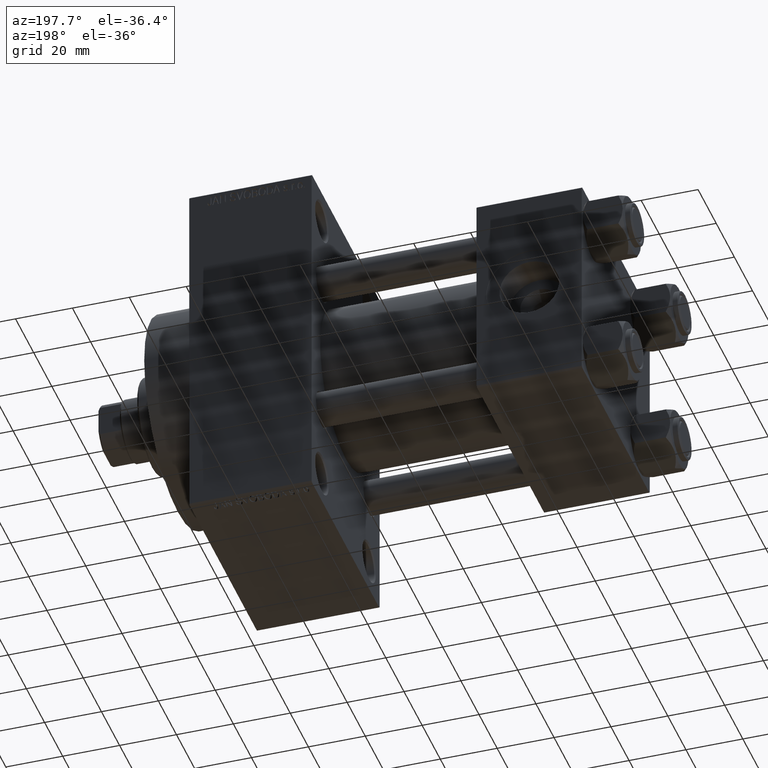
[diagram: clean part render]
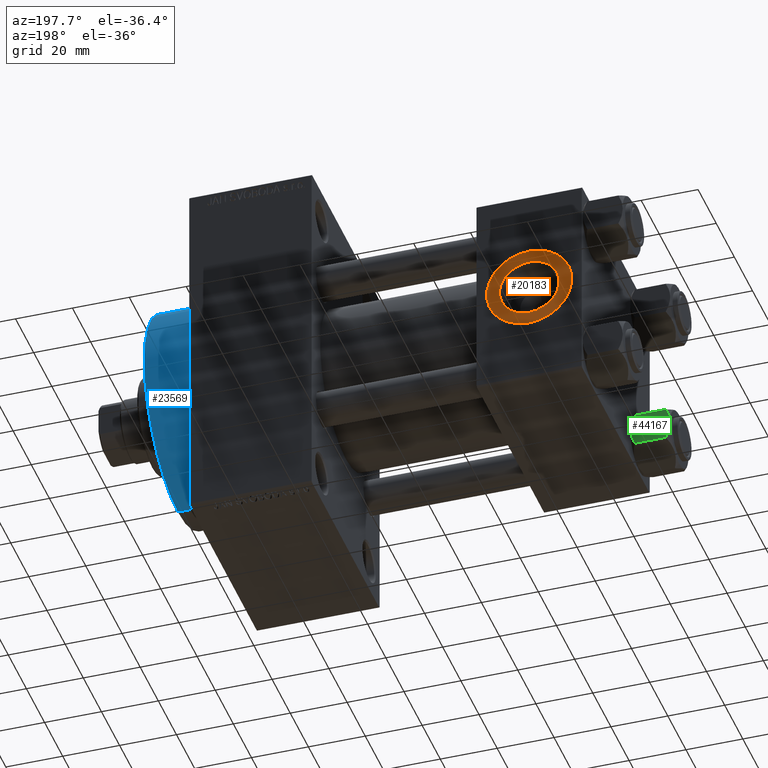
[diagram: same view with three faces highlighted in distinct colors, each labeled with its STEP entity id]
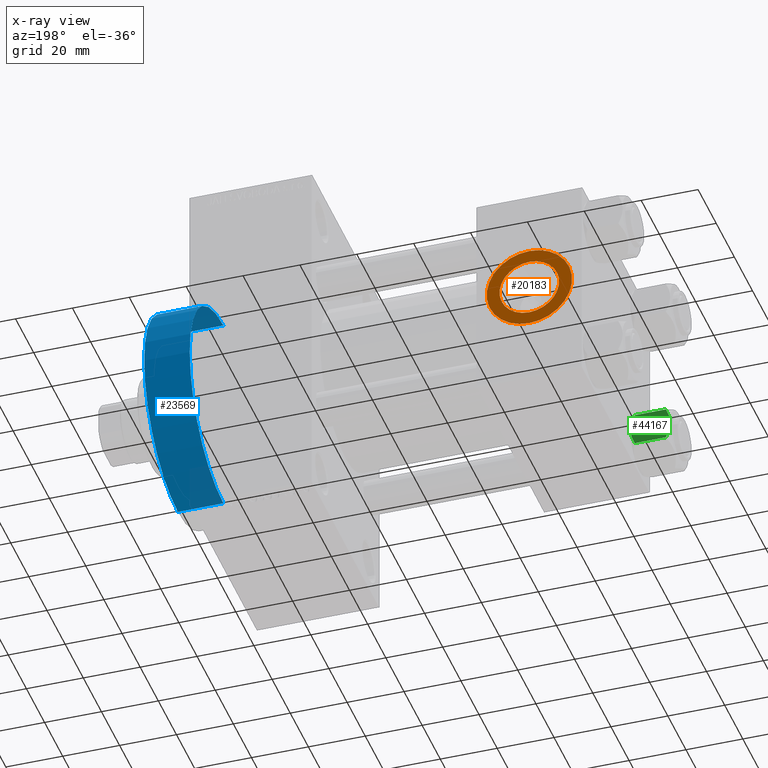
[diagram: x-ray of the same camera — body ghosted, the three highlighted faces saturated]
A machine part, auxiliary view with three faces highlighted in distinct colors.
The next image is the same camera in x-ray (body ghosted, the three faces saturated) — at least one of them is partly hidden behind the body in this view.
Their STEP definitions:

[orange] entity #20183 — the highlighted planar face has unit normal (0, 1, 0).
#901 = PLANE ( 'NONE',  #35239 ) ;
#2220 = VERTEX_POINT ( 'NONE', #19754 ) ;
#3038 = EDGE_CURVE ( 'NONE', #2220, #31862, #47164, .T. ) ;
#3159 = CARTESIAN_POINT ( 'NONE',  ( 18.50000000000000000, 37.29999999999999005, -10.48000000000000043 ) ) ;
#3213 = DIRECTION ( 'NONE',  ( 0.000000000000000000, 1.000000000000000000, 0.000000000000000000 ) ) ;
#6335 = ORIENTED_EDGE ( 'NONE', *, *, #21516, .T. ) ;
#6540 = EDGE_LOOP ( 'NONE', ( #45187, #6335 ) ) ;
#7510 = DIRECTION ( 'NONE',  ( 0.000000000000000000, 0.000000000000000000, 1.000000000000000000 ) ) ;
#8097 = CIRCLE ( 'NONE', #43978, 15.00000000000000178 ) ;
#9530 = DIRECTION ( 'NONE',  ( 0.000000000000000000, 1.000000000000000000, 0.000000000000000000 ) ) ;
#9611 = CIRCLE ( 'NONE', #12644, 10.48000000000000043 ) ;
#10830 = CARTESIAN_POINT ( 'NONE',  ( 18.50000000000000000, 37.29999999999999005, 0.000000000000000000 ) ) ;
#11391 = FACE_BOUND ( 'NONE', #25486, .T. ) ;
#12397 = VERTEX_POINT ( 'NONE', #18390 ) ;
#12644 = AXIS2_PLACEMENT_3D ( 'NONE', #25197, #40245, #7510 ) ;
#13764 = ORIENTED_EDGE ( 'NONE', *, *, #3038, .F. ) ;
#15444 = CARTESIAN_POINT ( 'NONE',  ( 18.50000000000000000, 37.29999999999999005, 0.000000000000000000 ) ) ;
#18087 = FACE_OUTER_BOUND ( 'NONE', #6540, .T. ) ;
#18390 = CARTESIAN_POINT ( 'NONE',  ( 18.50000000000000355, 37.29999999999999005, -15.00000000000000178 ) ) ;
#19754 = CARTESIAN_POINT ( 'NONE',  ( 18.50000000000000000, 37.29999999999999005, 10.48000000000000043 ) ) ;
#20183 = ADVANCED_FACE ( 'NONE', ( #11391, #18087 ), #901, .T. ) ;
#21059 = CARTESIAN_POINT ( 'NONE',  ( 18.50000000000000000, 37.29999999999999005, 15.00000000000000178 ) ) ;
#21165 = DIRECTION ( 'NONE',  ( 0.000000000000000000, 1.000000000000000000, 0.000000000000000000 ) ) ;
#21516 = EDGE_CURVE ( 'NONE', #12397, #27801, #36804, .T. ) ;
#25197 = CARTESIAN_POINT ( 'NONE',  ( 18.50000000000000000, 37.29999999999999005, 0.000000000000000000 ) ) ;
#25270 = DIRECTION ( 'NONE',  ( 0.000000000000000000, 0.000000000000000000, 1.000000000000000000 ) ) ;
#25486 = EDGE_LOOP ( 'NONE', ( #13764, #28624 ) ) ;
#27801 = VERTEX_POINT ( 'NONE', #21059 ) ;
#28624 = ORIENTED_EDGE ( 'NONE', *, *, #34078, .F. ) ;
#31862 = VERTEX_POINT ( 'NONE', #3159 ) ;
#32614 = DIRECTION ( 'NONE',  ( 0.000000000000000000, 0.000000000000000000, 1.000000000000000000 ) ) ;
#32659 = DIRECTION ( 'NONE',  ( 0.000000000000000000, -0.000000000000000000, 1.000000000000000000 ) ) ;
#32811 = DIRECTION ( 'NONE',  ( 0.000000000000000000, 0.000000000000000000, 1.000000000000000000 ) ) ;
#34078 = EDGE_CURVE ( 'NONE', #31862, #2220, #9611, .T. ) ;
#34854 = AXIS2_PLACEMENT_3D ( 'NONE', #43378, #21165, #32614 ) ;
#35239 = AXIS2_PLACEMENT_3D ( 'NONE', #15444, #47236, #32659 ) ;
#35567 = EDGE_CURVE ( 'NONE', #27801, #12397, #8097, .T. ) ;
#36804 = CIRCLE ( 'NONE', #45188, 15.00000000000000178 ) ;
#40245 = DIRECTION ( 'NONE',  ( 0.000000000000000000, 1.000000000000000000, 0.000000000000000000 ) ) ;
#42267 = CARTESIAN_POINT ( 'NONE',  ( 18.50000000000000000, 37.29999999999999005, 0.000000000000000000 ) ) ;
#43378 = CARTESIAN_POINT ( 'NONE',  ( 18.50000000000000000, 37.29999999999999005, 0.000000000000000000 ) ) ;
#43978 = AXIS2_PLACEMENT_3D ( 'NONE', #10830, #3213, #32811 ) ;
#45187 = ORIENTED_EDGE ( 'NONE', *, *, #35567, .T. ) ;
#45188 = AXIS2_PLACEMENT_3D ( 'NONE', #42267, #9530, #25270 ) ;
#47164 = CIRCLE ( 'NONE', #34854, 10.48000000000000043 ) ;
#47236 = DIRECTION ( 'NONE',  ( 0.000000000000000000, 1.000000000000000000, 0.000000000000000000 ) ) ;

[blue] entity #23569 — the highlighted cylindrical surface (partial cylindrical patch) has radius 37 mm, axis along (-1, -0, -0).
#351 = DIRECTION ( 'NONE',  ( 1.000000000000000000, 0.000000000000000000, 0.000000000000000000 ) ) ;
#1832 = DIRECTION ( 'NONE',  ( -1.000000000000000000, -0.000000000000000000, -0.000000000000000000 ) ) ;
#4718 = AXIS2_PLACEMENT_3D ( 'NONE', #7109, #20575, #31080 ) ;
#7109 = CARTESIAN_POINT ( 'NONE',  ( 154.0000000000000284, 0.000000000000000000, 0.000000000000000000 ) ) ;
#11278 = LINE ( 'NONE', #15103, #23834 ) ;
#11695 = ORIENTED_EDGE ( 'NONE', *, *, #20097, .F. ) ;
#14561 = DIRECTION ( 'NONE',  ( 0.000000000000000000, 0.000000000000000000, 1.000000000000000000 ) ) ;
#15018 = CARTESIAN_POINT ( 'NONE',  ( 138.0000000000000000, 4.531193156845206793E-15, -37.00000000000000000 ) ) ;
#15103 = CARTESIAN_POINT ( 'NONE',  ( 154.0000000000000284, 4.531193156845206793E-15, -37.00000000000000000 ) ) ;
#15563 = ORIENTED_EDGE ( 'NONE', *, *, #33059, .F. ) ;
#16499 = CARTESIAN_POINT ( 'NONE',  ( 154.0000000000000284, 0.000000000000000000, 37.00000000000000000 ) ) ;
#19396 = DIRECTION ( 'NONE',  ( 0.000000000000000000, 0.000000000000000000, -1.000000000000000000 ) ) ;
#20097 = EDGE_CURVE ( 'NONE', #38941, #36927, #38280, .T. ) ;
#20575 = DIRECTION ( 'NONE',  ( 1.000000000000000000, 0.000000000000000000, 0.000000000000000000 ) ) ;
#21223 = CIRCLE ( 'NONE', #39556, 37.00000000000000000 ) ;
#21254 = FACE_OUTER_BOUND ( 'NONE', #42635, .T. ) ;
#23569 = ADVANCED_FACE ( 'NONE', ( #21254 ), #28422, .T. ) ;
#23834 = VECTOR ( 'NONE', #43779, 1000.000000000000000 ) ;
#24231 = CARTESIAN_POINT ( 'NONE',  ( 154.0000000000000284, 4.531193156845206793E-15, -37.00000000000000000 ) ) ;
#24730 = EDGE_CURVE ( 'NONE', #38941, #29788, #11278, .T. ) ;
#27364 = LINE ( 'NONE', #28299, #42391 ) ;
#28088 = ORIENTED_EDGE ( 'NONE', *, *, #43966, .T. ) ;
#28299 = CARTESIAN_POINT ( 'NONE',  ( 154.0000000000000284, 0.000000000000000000, 37.00000000000000000 ) ) ;
#28422 = CYLINDRICAL_SURFACE ( 'NONE', #42231, 37.00000000000000000 ) ;
#28653 = DIRECTION ( 'NONE',  ( -1.000000000000000000, -0.000000000000000000, -0.000000000000000000 ) ) ;
#29788 = VERTEX_POINT ( 'NONE', #15018 ) ;
#31080 = DIRECTION ( 'NONE',  ( 0.000000000000000000, 0.000000000000000000, -1.000000000000000000 ) ) ;
#32218 = ORIENTED_EDGE ( 'NONE', *, *, #24730, .T. ) ;
#33059 = EDGE_CURVE ( 'NONE', #36927, #40703, #27364, .T. ) ;
#34592 = CARTESIAN_POINT ( 'NONE',  ( 138.0000000000000000, 0.000000000000000000, 37.00000000000000000 ) ) ;
#36927 = VERTEX_POINT ( 'NONE', #16499 ) ;
#38280 = CIRCLE ( 'NONE', #4718, 37.00000000000000000 ) ;
#38941 = VERTEX_POINT ( 'NONE', #24231 ) ;
#39556 = AXIS2_PLACEMENT_3D ( 'NONE', #41390, #351, #19396 ) ;
#40703 = VERTEX_POINT ( 'NONE', #34592 ) ;
#41390 = CARTESIAN_POINT ( 'NONE',  ( 138.0000000000000000, 0.000000000000000000, 0.000000000000000000 ) ) ;
#42231 = AXIS2_PLACEMENT_3D ( 'NONE', #46584, #28653, #14561 ) ;
#42391 = VECTOR ( 'NONE', #1832, 1000.000000000000000 ) ;
#42635 = EDGE_LOOP ( 'NONE', ( #11695, #32218, #28088, #15563 ) ) ;
#43779 = DIRECTION ( 'NONE',  ( -1.000000000000000000, -0.000000000000000000, -0.000000000000000000 ) ) ;
#43966 = EDGE_CURVE ( 'NONE', #29788, #40703, #21223, .T. ) ;
#46584 = CARTESIAN_POINT ( 'NONE',  ( 154.0000000000000284, 0.000000000000000000, 0.000000000000000000 ) ) ;

[green] entity #44167 — the highlighted planar face has unit normal (0, -1, 0).
#350 = CARTESIAN_POINT ( 'NONE',  ( -3.958929922320420403, -10.06321519197517844, -0.7421398502353970805 ) ) ;
#376 = VECTOR ( 'NONE', #20427, 1000.000000000000000 ) ;
#575 = CARTESIAN_POINT ( 'NONE',  ( -1.020132157807625450, -10.06321519197517489, 4.052205619664572033E-15 ) ) ;
#979 = PLANE ( 'NONE',  #18931 ) ;
#1215 = FACE_OUTER_BOUND ( 'NONE', #22141, .T. ) ;
#1378 = EDGE_CURVE ( 'NONE', #4014, #14827, #6697, .T. ) ;
#3302 = LINE ( 'NONE', #18787, #27522 ) ;
#3356 = B_SPLINE_CURVE_WITH_KNOTS ( 'NONE', 3,
 ( #11764, #22280, #26323, #350, #43561, #36868, #575, #4146 ),
 .UNSPECIFIED., .F., .F.,
 ( 4, 2, 2, 4 ),
 ( 0.01467889604968879332, 0.01619420351931635110, 0.01770951098894390716, 0.02074012592819902273 ),
 .UNSPECIFIED. ) ;
#3860 = DIRECTION ( 'NONE',  ( -1.492877345935290102E-16, 1.000000000000000000, 0.000000000000000000 ) ) ;
#4014 = VERTEX_POINT ( 'NONE', #40977 ) ;
#4146 = CARTESIAN_POINT ( 'NONE',  ( 1.502314598737159623E-15, -10.06321519197518199, 0.000000000000000000 ) ) ;
#4239 = DIRECTION ( 'NONE',  ( -0.000000000000000000, -0.000000000000000000, 1.000000000000000000 ) ) ;
#4547 = DIRECTION ( 'NONE',  ( -1.000000000000000000, -1.492877345935290102E-16, 0.000000000000000000 ) ) ;
#6101 = CARTESIAN_POINT ( 'NONE',  ( 5.810000000000000497, -10.06321519197517667, -14.00000000000000000 ) ) ;
#6697 = B_SPLINE_CURVE_WITH_KNOTS ( 'NONE', 3,
 ( #10870, #44532, #25913, #25676, #11810, #37380, #40033, #7992, #15167 ),
 .UNSPECIFIED., .F., .F.,
 ( 4, 2, 1, 2, 4 ),
 ( 0.02074012592819902273, 0.02149589804477578664, 0.02225167016135255402, 0.02376321439450608530, 0.02678630286081314441 ),
 .UNSPECIFIED. ) ;
#7039 = CARTESIAN_POINT ( 'NONE',  ( 1.502314598737159623E-15, -10.06321519197518199, -14.00000000000000000 ) ) ;
#7992 = CARTESIAN_POINT ( 'NONE',  ( 4.908816193182381937, -10.06321519197517844, -1.106192904616003059 ) ) ;
#8918 = VERTEX_POINT ( 'NONE', #43451 ) ;
#9425 = CARTESIAN_POINT ( 'NONE',  ( 5.810000000000000497, -10.06321519197517667, -1.556784808024811895 ) ) ;
#10123 = CARTESIAN_POINT ( 'NONE',  ( -4.908816193182382825, -10.06321519197518022, -12.89380709538399650 ) ) ;
#10870 = CARTESIAN_POINT ( 'NONE',  ( 1.502314598737159623E-15, -10.06321519197518199, 0.000000000000000000 ) ) ;
#11764 = CARTESIAN_POINT ( 'NONE',  ( -5.810000000000000497, -10.06321519197517844, -1.556784808024813893 ) ) ;
#11810 = CARTESIAN_POINT ( 'NONE',  ( 1.772424303831126258, -10.06321519197517311, -0.1338870921722345175 ) ) ;
#11873 = EDGE_CURVE ( 'NONE', #22324, #16914, #3302, .T. ) ;
#12353 = CARTESIAN_POINT ( 'NONE',  ( 1.502314598737159623E-15, -10.06321519197518199, -14.00000000000000000 ) ) ;
#12417 = ORIENTED_EDGE ( 'NONE', *, *, #17288, .F. ) ;
#13254 = CARTESIAN_POINT ( 'NONE',  ( -5.810000000000000497, -10.06321519197517844, -12.44321519197518633 ) ) ;
#14173 = CARTESIAN_POINT ( 'NONE',  ( -2.508586450168039494, -10.06321519197517844, -13.70242473679677353 ) ) ;
#14258 = EDGE_CURVE ( 'NONE', #8918, #22786, #35510, .T. ) ;
#14827 = VERTEX_POINT ( 'NONE', #9425 ) ;
#15167 = CARTESIAN_POINT ( 'NONE',  ( 5.810000000000000497, -10.06321519197517667, -1.556784808024811895 ) ) ;
#15456 = CARTESIAN_POINT ( 'NONE',  ( 1.020132157807625228, -10.06321519197517667, -14.00000000000000533 ) ) ;
#15760 = CARTESIAN_POINT ( 'NONE',  ( 5.810000000000000497, -10.06321519197517667, -14.00000000000000000 ) ) ;
#16914 = VERTEX_POINT ( 'NONE', #23637 ) ;
#17246 = ORIENTED_EDGE ( 'NONE', *, *, #14258, .F. ) ;
#17288 = EDGE_CURVE ( 'NONE', #22786, #22324, #20451, .T. ) ;
#17452 = EDGE_CURVE ( 'NONE', #16914, #4014, #3356, .T. ) ;
#18787 = CARTESIAN_POINT ( 'NONE',  ( -5.810000000000000497, -10.06321519197517844, -14.00000000000000000 ) ) ;
#18931 = AXIS2_PLACEMENT_3D ( 'NONE', #15760, #3860, #4547 ) ;
#19104 = ORIENTED_EDGE ( 'NONE', *, *, #17452, .F. ) ;
#19266 = CARTESIAN_POINT ( 'NONE',  ( 4.900668367960795635, -10.06321519197517667, -12.87844331629023564 ) ) ;
#20427 = DIRECTION ( 'NONE',  ( -0.000000000000000000, -0.000000000000000000, 1.000000000000000000 ) ) ;
#20451 = B_SPLINE_CURVE_WITH_KNOTS ( 'NONE', 3,
 ( #46902, #32331, #39049, #45977, #20654, #14173, #35930, #10123, #13254 ),
 .UNSPECIFIED., .F., .F.,
 ( 4, 2, 1, 2, 4 ),
 ( 0.02074012592819901926, 0.02149589804477578664, 0.02225167016135255055, 0.02376321439450608183, 0.02678630286081314094 ),
 .UNSPECIFIED. ) ;
#20654 = CARTESIAN_POINT ( 'NONE',  ( -1.772424303831127590, -10.06321519197517667, -13.86611290782776784 ) ) ;
#22141 = EDGE_LOOP ( 'NONE', ( #17246, #39808, #40776, #19104, #43902, #12417 ) ) ;
#22280 = CARTESIAN_POINT ( 'NONE',  ( -5.359707691559672860, -10.06321519197517844, -1.331638653804651851 ) ) ;
#22324 = VERTEX_POINT ( 'NONE', #32639 ) ;
#22786 = VERTEX_POINT ( 'NONE', #7039 ) ;
#22858 = CARTESIAN_POINT ( 'NONE',  ( 5.359707691559671972, -10.06321519197517667, -12.66836134619534882 ) ) ;
#23637 = CARTESIAN_POINT ( 'NONE',  ( -5.810000000000000497, -10.06321519197517844, -1.556784808024813893 ) ) ;
#25676 = CARTESIAN_POINT ( 'NONE',  ( 1.018274738099083976, -10.06321519197517667, -0.04822742080070548110 ) ) ;
#25913 = CARTESIAN_POINT ( 'NONE',  ( 0.5112014849988879561, -10.06321519197517667, -0.009803979428909967431 ) ) ;
#26323 = CARTESIAN_POINT ( 'NONE',  ( -4.900668367960793859, -10.06321519197517667, -1.121556683709771463 ) ) ;
#27522 = VECTOR ( 'NONE', #4239, 1000.000000000000000 ) ;
#30499 = CARTESIAN_POINT ( 'NONE',  ( 2.013954290287968796, -10.06321519197517667, -13.84298883202400532 ) ) ;
#31616 = EDGE_CURVE ( 'NONE', #8918, #14827, #37871, .T. ) ;
#32331 = CARTESIAN_POINT ( 'NONE',  ( -0.2543996698847484916, -10.06321519197517844, -14.00000000000000888 ) ) ;
#32639 = CARTESIAN_POINT ( 'NONE',  ( -5.810000000000000497, -10.06321519197517844, -12.44321519197518633 ) ) ;
#34323 = CARTESIAN_POINT ( 'NONE',  ( 5.810000000000000497, -10.06321519197517667, -12.44321519197518811 ) ) ;
#35510 = B_SPLINE_CURVE_WITH_KNOTS ( 'NONE', 3,
 ( #34323, #22858, #19266, #37680, #44830, #30499, #15456, #12353 ),
 .UNSPECIFIED., .F., .F.,
 ( 4, 2, 2, 4 ),
 ( 0.01467889604968879158, 0.01619420351931634763, 0.01770951098894390369, 0.02074012592819901926 ),
 .UNSPECIFIED. ) ;
#35930 = CARTESIAN_POINT ( 'NONE',  ( -3.960942496020602555, -10.06321519197517844, -13.28842716763896270 ) ) ;
#36868 = CARTESIAN_POINT ( 'NONE',  ( -2.013954290287968352, -10.06321519197517844, -0.1570111679759963463 ) ) ;
#37380 = CARTESIAN_POINT ( 'NONE',  ( 2.508586450168040827, -10.06321519197517667, -0.2975752632032254708 ) ) ;
#37680 = CARTESIAN_POINT ( 'NONE',  ( 3.958929922320421291, -10.06321519197517489, -13.25786014976460514 ) ) ;
#37871 = LINE ( 'NONE', #6101, #376 ) ;
#39049 = CARTESIAN_POINT ( 'NONE',  ( -0.5112014849988885112, -10.06321519197517844, -13.99019602057109246 ) ) ;
#39808 = ORIENTED_EDGE ( 'NONE', *, *, #31616, .T. ) ;
#40033 = CARTESIAN_POINT ( 'NONE',  ( 3.960942496020604331, -10.06321519197518022, -0.7115728323610380768 ) ) ;
#40776 = ORIENTED_EDGE ( 'NONE', *, *, #1378, .F. ) ;
#40977 = CARTESIAN_POINT ( 'NONE',  ( 1.502314598737159623E-15, -10.06321519197518199, 0.000000000000000000 ) ) ;
#43451 = CARTESIAN_POINT ( 'NONE',  ( 5.810000000000000497, -10.06321519197517667, -12.44321519197518811 ) ) ;
#43561 = CARTESIAN_POINT ( 'NONE',  ( -3.474497094393254937, -10.06321519197517844, -0.5726960901042742469 ) ) ;
#43902 = ORIENTED_EDGE ( 'NONE', *, *, #11873, .F. ) ;
#44167 = ADVANCED_FACE ( 'NONE', ( #1215 ), #979, .F. ) ;
#44532 = CARTESIAN_POINT ( 'NONE',  ( 0.2543996698847484361, -10.06321519197517667, 4.398642095091581661E-15 ) ) ;
#44830 = CARTESIAN_POINT ( 'NONE',  ( 3.474497094393254493, -10.06321519197517667, -13.42730390989572520 ) ) ;
#45977 = CARTESIAN_POINT ( 'NONE',  ( -1.018274738099084864, -10.06321519197518022, -13.95177257919929303 ) ) ;
#46902 = CARTESIAN_POINT ( 'NONE',  ( 1.502314598737159623E-15, -10.06321519197518199, -14.00000000000000000 ) ) ;